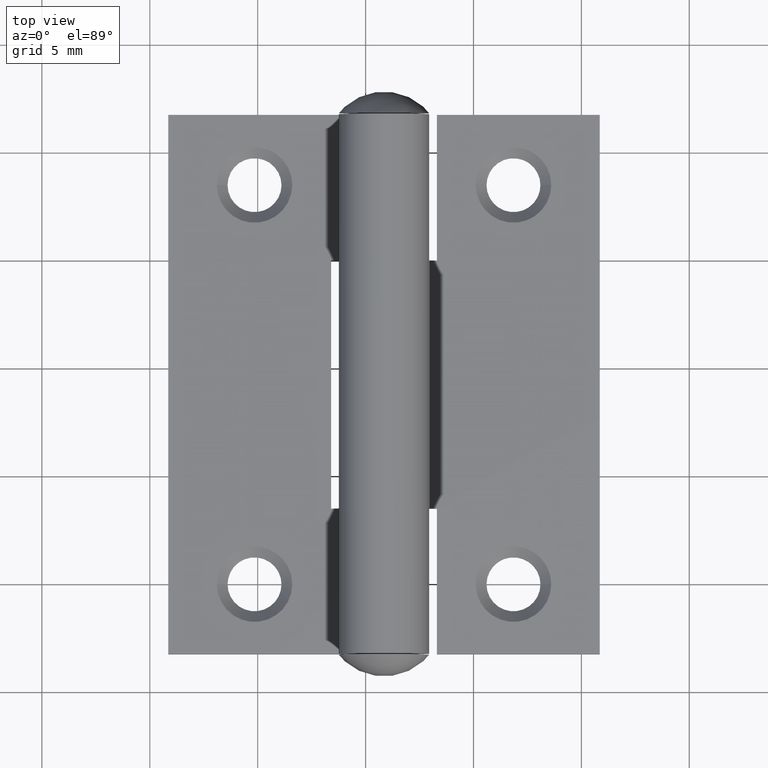
[diagram: clean part render]
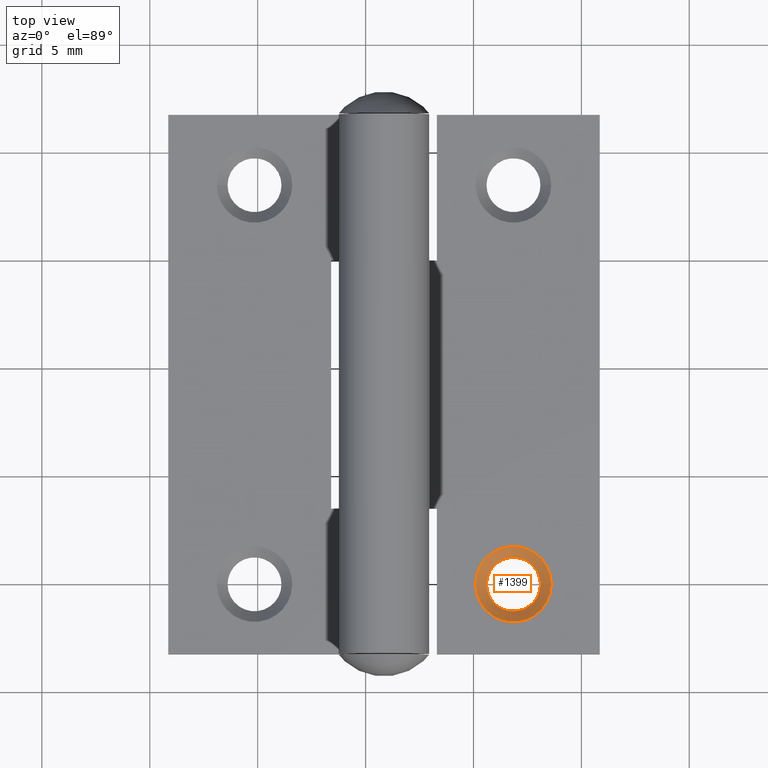
[diagram: same view with one face highlighted and labeled with its STEP entity id]
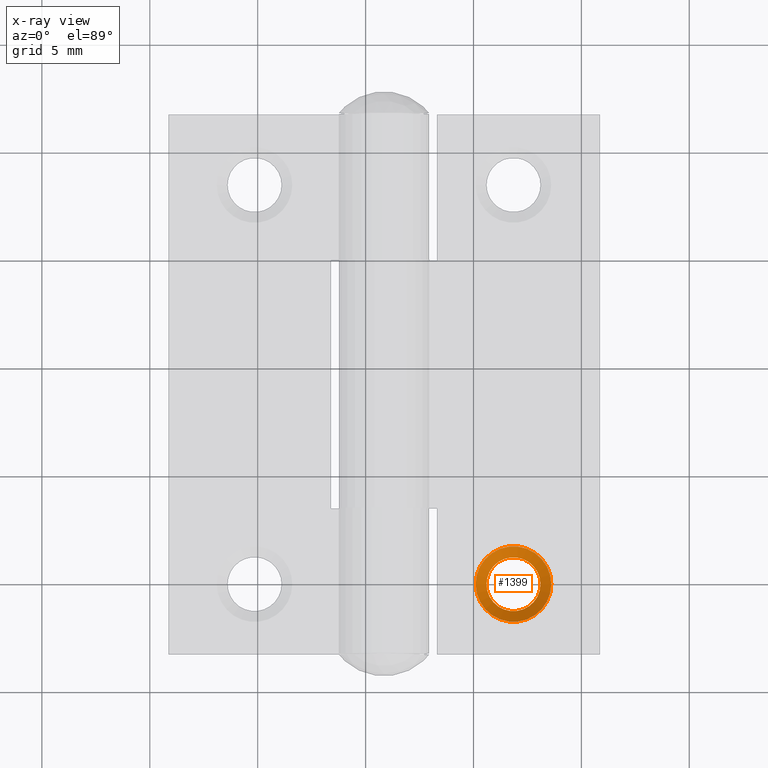
[diagram: x-ray of the same camera — body ghosted, the highlighted face saturated]
A machine part, top view. The second image highlights one B-rep face of the part: STEP entity #1399.
The next image is the same camera in x-ray: the body ghosted, the highlighted face saturated — about 0% of this face is hidden behind the body in this view.
In plain terms, the highlighted conical surface has half-angle 45 deg.
Its self-contained STEP definition (entity closure, byte-faithful):
#211 = ORIENTED_EDGE ( 'NONE', *, *, #1571, .F. ) ;
#335 = AXIS2_PLACEMENT_3D ( 'NONE', #7266, #1950, #10625 ) ;
#675 = DIRECTION ( 'NONE',  ( 1.000000000000000000, 0.000000000000000000, 0.000000000000000000 ) ) ;
#770 = CARTESIAN_POINT ( 'NONE',  ( -9.349999999999997868, 9.249999999999998224, 0.2000000000000120015 ) ) ;
#1165 = EDGE_CURVE ( 'NONE', #10481, #10481, #4642, .T. ) ;
#1175 = EDGE_LOOP ( 'NONE', ( #1685 ) ) ;
#1399 = ADVANCED_FACE ( 'NONE', ( #6469, #4540 ), #2331, .F. ) ;
#1565 = DIRECTION ( 'NONE',  ( 0.000000000000000000, 0.000000000000000000, 1.000000000000000000 ) ) ;
#1571 = EDGE_CURVE ( 'NONE', #5726, #5726, #6715, .T. ) ;
#1643 = CARTESIAN_POINT ( 'NONE',  ( -8.099999999999997868, 9.249999999999998224, 0.2000000000000118627 ) ) ;
#1685 = ORIENTED_EDGE ( 'NONE', *, *, #1165, .F. ) ;
#1950 = DIRECTION ( 'NONE',  ( -1.192622389734055124E-16, 0.000000000000000000, -1.000000000000000000 ) ) ;
#2331 = CONICAL_SURFACE ( 'NONE', #6969, 1.250000000000000222, 0.7853981633974539411 ) ;
#2459 = CARTESIAN_POINT ( 'NONE',  ( -9.849999999999992539, 9.249999999999998224, 0.7000000000000010658 ) ) ;
#2666 = DIRECTION ( 'NONE',  ( 0.000000000000000000, 0.000000000000000000, 1.000000000000000000 ) ) ;
#4540 = FACE_BOUND ( 'NONE', #1175, .T. ) ;
#4642 = CIRCLE ( 'NONE', #10847, 1.249999999999999334 ) ;
#5726 = VERTEX_POINT ( 'NONE', #2459 ) ;
#6469 = FACE_OUTER_BOUND ( 'NONE', #10477, .T. ) ;
#6715 = CIRCLE ( 'NONE', #335, 1.749999999999994671 ) ;
#6969 = AXIS2_PLACEMENT_3D ( 'NONE', #1643, #1565, #675 ) ;
#7070 = DIRECTION ( 'NONE',  ( -1.000000000000000000, 0.000000000000000000, 0.000000000000000000 ) ) ;
#7266 = CARTESIAN_POINT ( 'NONE',  ( -8.099999999999997868, 9.249999999999998224, 0.7000000000000008438 ) ) ;
#7901 = CARTESIAN_POINT ( 'NONE',  ( -8.099999999999997868, 9.249999999999998224, 0.2000000000000120015 ) ) ;
#10477 = EDGE_LOOP ( 'NONE', ( #211 ) ) ;
#10481 = VERTEX_POINT ( 'NONE', #770 ) ;
#10625 = DIRECTION ( 'NONE',  ( -1.000000000000000000, 0.000000000000000000, 1.239088197126294515E-16 ) ) ;
#10847 = AXIS2_PLACEMENT_3D ( 'NONE', #7901, #2666, #7070 ) ;